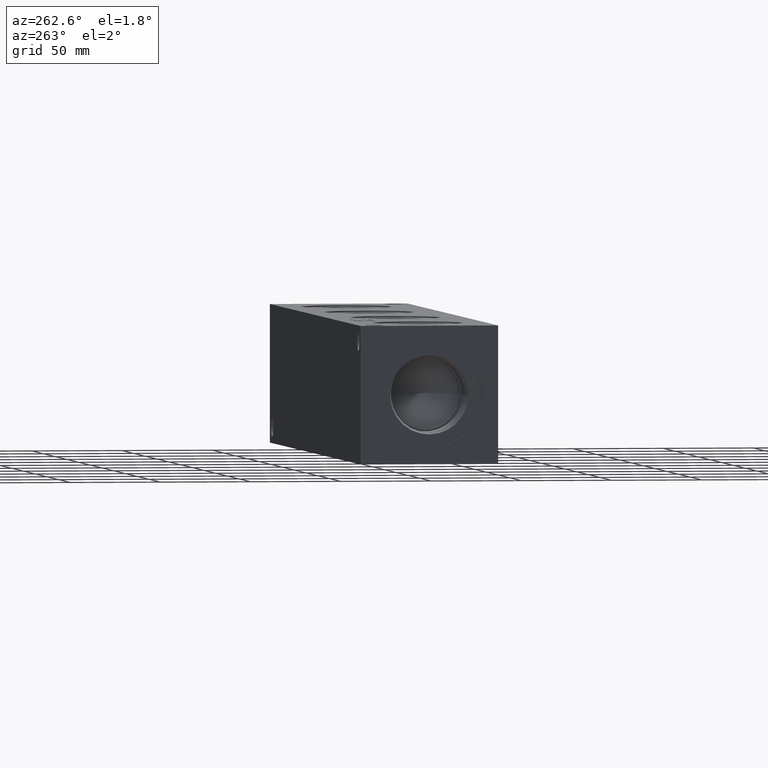
[diagram: clean part render]
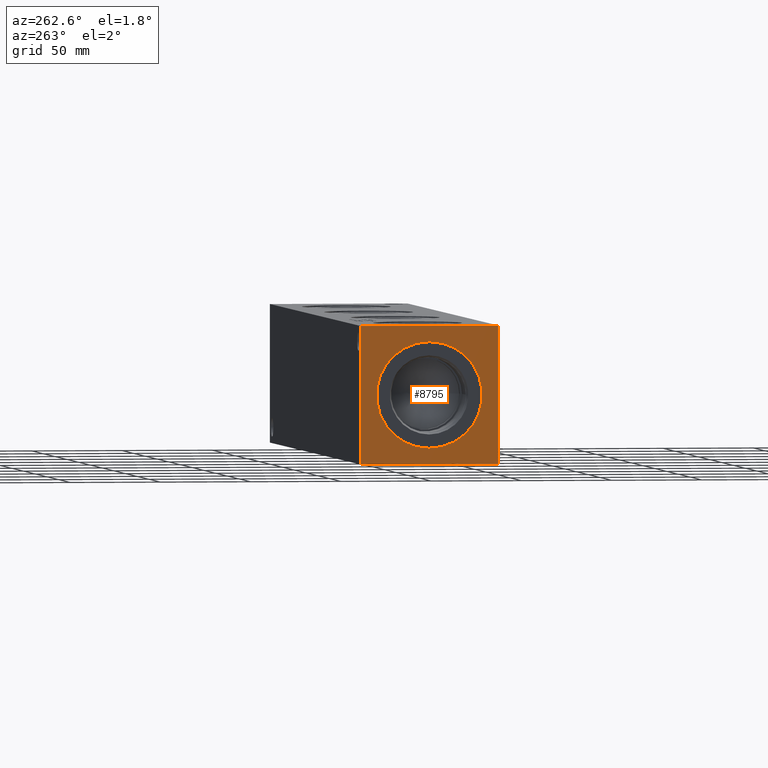
[diagram: same view with one face highlighted and labeled with its STEP entity id]
A machine part, auxiliary view. The second image highlights one B-rep face of the part: STEP entity #8795.
In plain terms, the highlighted planar face has unit normal (-1, 0, 0).
Its self-contained STEP definition (entity closure, byte-faithful):
#189=CIRCLE('',#9088,29.2862);
#190=CIRCLE('',#9089,29.2862);
#408=FACE_BOUND('',#1719,.T.);
#1209=FACE_OUTER_BOUND('',#1718,.T.);
#1718=EDGE_LOOP('',(#7760,#7761,#7762,#7763));
#1719=EDGE_LOOP('',(#7764,#7765));
#2016=LINE('',#13444,#2786);
#2498=LINE('',#15583,#3268);
#2499=LINE('',#15584,#3269);
#2500=LINE('',#15585,#3270);
#2786=VECTOR('',#9822,10.);
#3268=VECTOR('',#11306,10.);
#3269=VECTOR('',#11307,10.);
#3270=VECTOR('',#11308,10.);
#3582=VERTEX_POINT('',#13437);
#3585=VERTEX_POINT('',#13442);
#3903=VERTEX_POINT('',#14664);
#3904=VERTEX_POINT('',#14665);
#4097=VERTEX_POINT('',#15581);
#4098=VERTEX_POINT('',#15582);
#4563=EDGE_CURVE('',#3585,#3582,#2016,.T.);
#5027=EDGE_CURVE('',#3903,#3904,#189,.T.);
#5028=EDGE_CURVE('',#3904,#3903,#190,.T.);
#5327=EDGE_CURVE('',#4097,#4098,#2498,.T.);
#5328=EDGE_CURVE('',#4098,#3582,#2499,.T.);
#5329=EDGE_CURVE('',#4097,#3585,#2500,.T.);
#7760=ORIENTED_EDGE('',*,*,#5327,.T.);
#7761=ORIENTED_EDGE('',*,*,#5328,.T.);
#7762=ORIENTED_EDGE('',*,*,#4563,.F.);
#7763=ORIENTED_EDGE('',*,*,#5329,.F.);
#7764=ORIENTED_EDGE('',*,*,#5027,.T.);
#7765=ORIENTED_EDGE('',*,*,#5028,.T.);
#8036=PLANE('',#9388);
#8795=ADVANCED_FACE('',(#1209,#408),#8036,.T.);
#9088=AXIS2_PLACEMENT_3D('',#14666,#10616,#10617);
#9089=AXIS2_PLACEMENT_3D('',#14667,#10618,#10619);
#9388=AXIS2_PLACEMENT_3D('',#15580,#11304,#11305);
#9822=DIRECTION('',(0.,-1.,0.));
#10616=DIRECTION('center_axis',(1.,0.,0.));
#10617=DIRECTION('ref_axis',(0.,0.,1.));
#10618=DIRECTION('center_axis',(1.,0.,0.));
#10619=DIRECTION('ref_axis',(0.,0.,1.));
#11304=DIRECTION('center_axis',(-1.,0.,0.));
#11305=DIRECTION('ref_axis',(0.,-1.,0.));
#11306=DIRECTION('',(0.,-1.,0.));
#11307=DIRECTION('',(0.,0.,1.));
#11308=DIRECTION('',(0.,0.,1.));
#13437=CARTESIAN_POINT('',(0.,0.,76.2));
#13442=CARTESIAN_POINT('',(0.,76.2,76.2));
#13444=CARTESIAN_POINT('',(0.,76.2,76.2));
#14664=CARTESIAN_POINT('',(0.,38.1,67.3862));
#14665=CARTESIAN_POINT('',(0.,38.1,8.8138));
#14666=CARTESIAN_POINT('Origin',(0.,38.1,38.1));
#14667=CARTESIAN_POINT('Origin',(0.,38.1,38.1));
#15580=CARTESIAN_POINT('Origin',(0.,76.2,0.));
#15581=CARTESIAN_POINT('',(0.,76.2,0.));
#15582=CARTESIAN_POINT('',(0.,0.,0.));
#15583=CARTESIAN_POINT('',(0.,76.2,0.));
#15584=CARTESIAN_POINT('',(0.,0.,0.));
#15585=CARTESIAN_POINT('',(0.,76.2,0.));